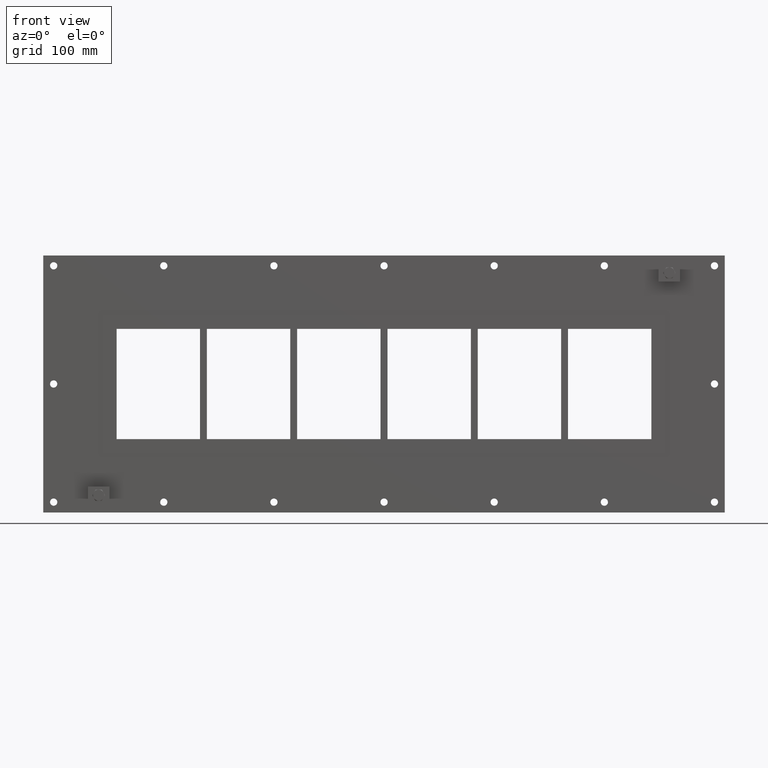
[diagram: clean part render]
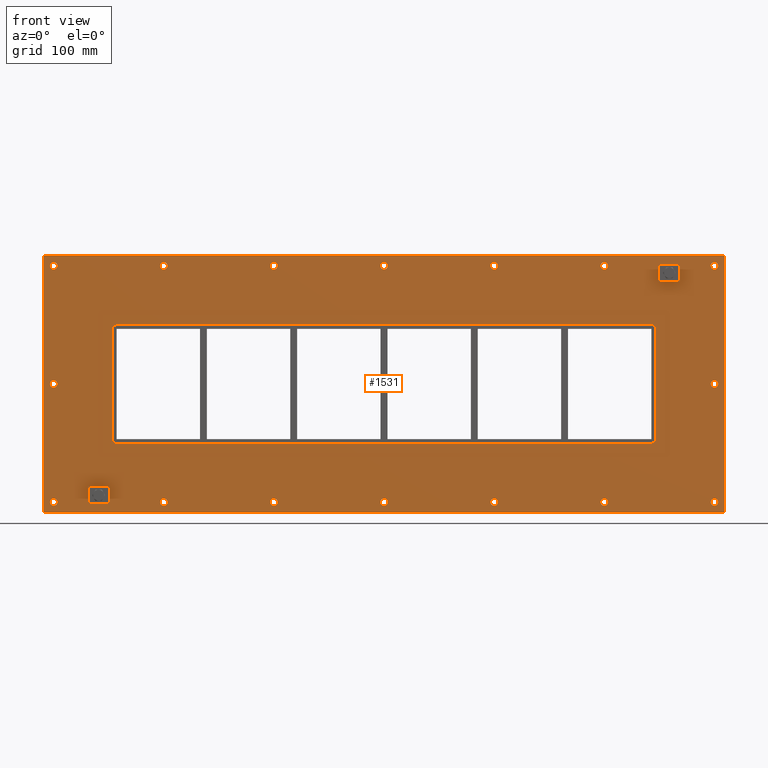
[diagram: same view with one face highlighted and labeled with its STEP entity id]
A machine part, front view. The second image highlights one B-rep face of the part: STEP entity #1531.
In plain terms, the highlighted planar face has unit normal (0, 1, 0).
Its self-contained STEP definition (entity closure, byte-faithful):
#84=CARTESIAN_POINT('',(-472.25000000000023,0.0,-170.75));
#85=VERTEX_POINT('',#84);
#86=CARTESIAN_POINT('',(-477.50000000000023,0.0,-170.75));
#87=DIRECTION('',(0.0,1.0,0.0));
#88=DIRECTION('',(1.0,0.0,0.0));
#89=AXIS2_PLACEMENT_3D('',#86,#87,#88);
#90=CIRCLE('',#89,5.25);
#91=EDGE_CURVE('',#85,#85,#90,.T.);
#112=CARTESIAN_POINT('',(482.9499999999997,0.0,0.050000000000026));
#113=VERTEX_POINT('',#112);
#114=CARTESIAN_POINT('',(477.69999999999976,0.0,0.050000000000026));
#115=DIRECTION('',(0.0,1.0,0.0));
#116=DIRECTION('',(1.0,0.0,0.0));
#117=AXIS2_PLACEMENT_3D('',#114,#115,#116);
#118=CIRCLE('',#117,5.25);
#119=EDGE_CURVE('',#113,#113,#118,.T.);
#140=CARTESIAN_POINT('',(-472.25000000000023,0.0,0.050000000000026));
#141=VERTEX_POINT('',#140);
#142=CARTESIAN_POINT('',(-477.50000000000023,0.0,0.050000000000026));
#143=DIRECTION('',(0.0,1.0,0.0));
#144=DIRECTION('',(1.0,0.0,0.0));
#145=AXIS2_PLACEMENT_3D('',#142,#143,#144);
#146=CIRCLE('',#145,5.25);
#147=EDGE_CURVE('',#141,#141,#146,.T.);
#168=CARTESIAN_POINT('',(-313.05000000000018,0.0,170.85000000000005));
#169=VERTEX_POINT('',#168);
#170=CARTESIAN_POINT('',(-318.30000000000018,0.0,170.85000000000005));
#171=DIRECTION('',(0.0,1.0,0.0));
#172=DIRECTION('',(1.0,0.0,0.0));
#173=AXIS2_PLACEMENT_3D('',#170,#171,#172);
#174=CIRCLE('',#173,5.25);
#175=EDGE_CURVE('',#169,#169,#174,.T.);
#196=CARTESIAN_POINT('',(-313.05000000000018,0.0,-170.75));
#197=VERTEX_POINT('',#196);
#198=CARTESIAN_POINT('',(-318.30000000000018,0.0,-170.75));
#199=DIRECTION('',(0.0,1.0,0.0));
#200=DIRECTION('',(1.0,0.0,0.0));
#201=AXIS2_PLACEMENT_3D('',#198,#199,#200);
#202=CIRCLE('',#201,5.25);
#203=EDGE_CURVE('',#197,#197,#202,.T.);
#224=CARTESIAN_POINT('',(-153.85000000000025,0.0,170.85000000000005));
#225=VERTEX_POINT('',#224);
#226=CARTESIAN_POINT('',(-159.10000000000022,0.0,170.85000000000005));
#227=DIRECTION('',(0.0,1.0,0.0));
#228=DIRECTION('',(1.0,0.0,0.0));
#229=AXIS2_PLACEMENT_3D('',#226,#227,#228);
#230=CIRCLE('',#229,5.25);
#231=EDGE_CURVE('',#225,#225,#230,.T.);
#252=CARTESIAN_POINT('',(-153.85000000000025,0.0,-170.75));
#253=VERTEX_POINT('',#252);
#254=CARTESIAN_POINT('',(-159.10000000000022,0.0,-170.75));
#255=DIRECTION('',(0.0,1.0,0.0));
#256=DIRECTION('',(1.0,0.0,0.0));
#257=AXIS2_PLACEMENT_3D('',#254,#255,#256);
#258=CIRCLE('',#257,5.25);
#259=EDGE_CURVE('',#253,#253,#258,.T.);
#280=CARTESIAN_POINT('',(5.349999999999771,0.0,170.85000000000005));
#281=VERTEX_POINT('',#280);
#282=CARTESIAN_POINT('',(0.099999999999785,0.0,170.85000000000005));
#283=DIRECTION('',(0.0,1.0,0.0));
#284=DIRECTION('',(1.0,0.0,0.0));
#285=AXIS2_PLACEMENT_3D('',#282,#283,#284);
#286=CIRCLE('',#285,5.25);
#287=EDGE_CURVE('',#281,#281,#286,.T.);
#308=CARTESIAN_POINT('',(5.349999999999771,0.0,-170.75));
#309=VERTEX_POINT('',#308);
#310=CARTESIAN_POINT('',(0.099999999999785,0.0,-170.75));
#311=DIRECTION('',(0.0,1.0,0.0));
#312=DIRECTION('',(1.0,0.0,0.0));
#313=AXIS2_PLACEMENT_3D('',#310,#311,#312);
#314=CIRCLE('',#313,5.25);
#315=EDGE_CURVE('',#309,#309,#314,.T.);
#336=CARTESIAN_POINT('',(164.5499999999997,0.0,170.85000000000005));
#337=VERTEX_POINT('',#336);
#338=CARTESIAN_POINT('',(159.29999999999973,0.0,170.85000000000005));
#339=DIRECTION('',(0.0,1.0,0.0));
#340=DIRECTION('',(1.0,0.0,0.0));
#341=AXIS2_PLACEMENT_3D('',#338,#339,#340);
#342=CIRCLE('',#341,5.25);
#343=EDGE_CURVE('',#337,#337,#342,.T.);
#364=CARTESIAN_POINT('',(164.5499999999997,0.0,-170.75));
#365=VERTEX_POINT('',#364);
#366=CARTESIAN_POINT('',(159.29999999999973,0.0,-170.75));
#367=DIRECTION('',(0.0,1.0,0.0));
#368=DIRECTION('',(1.0,0.0,0.0));
#369=AXIS2_PLACEMENT_3D('',#366,#367,#368);
#370=CIRCLE('',#369,5.25);
#371=EDGE_CURVE('',#365,#365,#370,.T.);
#392=CARTESIAN_POINT('',(323.74999999999972,0.0,170.85000000000005));
#393=VERTEX_POINT('',#392);
#394=CARTESIAN_POINT('',(318.49999999999972,0.0,170.85000000000005));
#395=DIRECTION('',(0.0,1.0,0.0));
#396=DIRECTION('',(1.0,0.0,0.0));
#397=AXIS2_PLACEMENT_3D('',#394,#395,#396);
#398=CIRCLE('',#397,5.25);
#399=EDGE_CURVE('',#393,#393,#398,.T.);
#420=CARTESIAN_POINT('',(323.74999999999972,0.0,-170.75));
#421=VERTEX_POINT('',#420);
#422=CARTESIAN_POINT('',(318.49999999999972,0.0,-170.75));
#423=DIRECTION('',(0.0,1.0,0.0));
#424=DIRECTION('',(1.0,0.0,0.0));
#425=AXIS2_PLACEMENT_3D('',#422,#423,#424);
#426=CIRCLE('',#425,5.25);
#427=EDGE_CURVE('',#421,#421,#426,.T.);
#448=CARTESIAN_POINT('',(482.9499999999997,0.0,-170.75));
#449=VERTEX_POINT('',#448);
#450=CARTESIAN_POINT('',(477.69999999999976,0.0,-170.75));
#451=DIRECTION('',(0.0,1.0,0.0));
#452=DIRECTION('',(1.0,0.0,0.0));
#453=AXIS2_PLACEMENT_3D('',#450,#451,#452);
#454=CIRCLE('',#453,5.25);
#455=EDGE_CURVE('',#449,#449,#454,.T.);
#476=CARTESIAN_POINT('',(-472.25000000000023,0.0,170.85000000000005));
#477=VERTEX_POINT('',#476);
#478=CARTESIAN_POINT('',(-477.50000000000023,0.0,170.85000000000005));
#479=DIRECTION('',(0.0,1.0,0.0));
#480=DIRECTION('',(1.0,0.0,0.0));
#481=AXIS2_PLACEMENT_3D('',#478,#479,#480);
#482=CIRCLE('',#481,5.25);
#483=EDGE_CURVE('',#477,#477,#482,.T.);
#504=CARTESIAN_POINT('',(482.9499999999997,0.0,170.85000000000005));
#505=VERTEX_POINT('',#504);
#506=CARTESIAN_POINT('',(477.69999999999976,0.0,170.85000000000005));
#507=DIRECTION('',(0.0,1.0,0.0));
#508=DIRECTION('',(1.0,0.0,0.0));
#509=AXIS2_PLACEMENT_3D('',#506,#507,#508);
#510=CIRCLE('',#509,5.25);
#511=EDGE_CURVE('',#505,#505,#510,.T.);
#1374=CARTESIAN_POINT('',(0.0,0.0,-1.743619E-014));
#1375=DIRECTION('',(0.0,1.0,0.0));
#1376=DIRECTION('',(0.0,0.0,1.0));
#1377=AXIS2_PLACEMENT_3D('',#1374,#1375,#1376);
#1378=PLANE('',#1377);
#1379=CARTESIAN_POINT('',(-492.50000000000006,0.0,185.74999999999994));
#1380=VERTEX_POINT('',#1379);
#1381=CARTESIAN_POINT('',(492.50000000000006,0.0,185.74999999999994));
#1382=VERTEX_POINT('',#1381);
#1383=CARTESIAN_POINT('',(-492.50000000000006,0.0,185.74999999999994));
#1384=DIRECTION('',(1.0,0.0,0.0));
#1385=VECTOR('',#1384,985.00000000000011);
#1386=LINE('',#1383,#1385);
#1387=EDGE_CURVE('',#1380,#1382,#1386,.T.);
#1388=ORIENTED_EDGE('',*,*,#1387,.F.);
#1389=CARTESIAN_POINT('',(-492.50000000000006,0.0,-185.75));
#1390=VERTEX_POINT('',#1389);
#1391=CARTESIAN_POINT('',(-492.50000000000006,0.0,-185.75));
#1392=DIRECTION('',(0.0,0.0,1.0));
#1393=VECTOR('',#1392,371.49999999999989);
#1394=LINE('',#1391,#1393);
#1395=EDGE_CURVE('',#1390,#1380,#1394,.T.);
#1396=ORIENTED_EDGE('',*,*,#1395,.F.);
#1397=CARTESIAN_POINT('',(492.50000000000006,0.0,-185.75));
#1398=VERTEX_POINT('',#1397);
#1399=CARTESIAN_POINT('',(492.50000000000006,0.0,-185.75));
#1400=DIRECTION('',(-1.0,0.0,0.0));
#1401=VECTOR('',#1400,985.00000000000011);
#1402=LINE('',#1399,#1401);
#1403=EDGE_CURVE('',#1398,#1390,#1402,.T.);
#1404=ORIENTED_EDGE('',*,*,#1403,.F.);
#1405=CARTESIAN_POINT('',(492.50000000000006,0.0,185.74999999999994));
#1406=DIRECTION('',(0.0,0.0,-1.0));
#1407=VECTOR('',#1406,371.49999999999989);
#1408=LINE('',#1405,#1407);
#1409=EDGE_CURVE('',#1382,#1398,#1408,.T.);
#1410=ORIENTED_EDGE('',*,*,#1409,.F.);
#1411=EDGE_LOOP('',(#1388,#1396,#1404,#1410));
#1412=FACE_OUTER_BOUND('',#1411,.T.);
#1413=ORIENTED_EDGE('',*,*,#91,.T.);
#1414=EDGE_LOOP('',(#1413));
#1415=FACE_BOUND('',#1414,.T.);
#1416=ORIENTED_EDGE('',*,*,#119,.T.);
#1417=EDGE_LOOP('',(#1416));
#1418=FACE_BOUND('',#1417,.T.);
#1419=ORIENTED_EDGE('',*,*,#147,.T.);
#1420=EDGE_LOOP('',(#1419));
#1421=FACE_BOUND('',#1420,.T.);
#1422=ORIENTED_EDGE('',*,*,#175,.T.);
#1423=EDGE_LOOP('',(#1422));
#1424=FACE_BOUND('',#1423,.T.);
#1425=ORIENTED_EDGE('',*,*,#203,.T.);
#1426=EDGE_LOOP('',(#1425));
#1427=FACE_BOUND('',#1426,.T.);
#1428=ORIENTED_EDGE('',*,*,#231,.T.);
#1429=EDGE_LOOP('',(#1428));
#1430=FACE_BOUND('',#1429,.T.);
#1431=ORIENTED_EDGE('',*,*,#259,.T.);
#1432=EDGE_LOOP('',(#1431));
#1433=FACE_BOUND('',#1432,.T.);
#1434=ORIENTED_EDGE('',*,*,#287,.T.);
#1435=EDGE_LOOP('',(#1434));
#1436=FACE_BOUND('',#1435,.T.);
#1437=ORIENTED_EDGE('',*,*,#315,.T.);
#1438=EDGE_LOOP('',(#1437));
#1439=FACE_BOUND('',#1438,.T.);
#1440=ORIENTED_EDGE('',*,*,#343,.T.);
#1441=EDGE_LOOP('',(#1440));
#1442=FACE_BOUND('',#1441,.T.);
#1443=ORIENTED_EDGE('',*,*,#371,.T.);
#1444=EDGE_LOOP('',(#1443));
#1445=FACE_BOUND('',#1444,.T.);
#1446=ORIENTED_EDGE('',*,*,#399,.T.);
#1447=EDGE_LOOP('',(#1446));
#1448=FACE_BOUND('',#1447,.T.);
#1449=ORIENTED_EDGE('',*,*,#427,.T.);
#1450=EDGE_LOOP('',(#1449));
#1451=FACE_BOUND('',#1450,.T.);
#1452=ORIENTED_EDGE('',*,*,#455,.T.);
#1453=EDGE_LOOP('',(#1452));
#1454=FACE_BOUND('',#1453,.T.);
#1455=ORIENTED_EDGE('',*,*,#483,.T.);
#1456=EDGE_LOOP('',(#1455));
#1457=FACE_BOUND('',#1456,.T.);
#1458=ORIENTED_EDGE('',*,*,#511,.T.);
#1459=EDGE_LOOP('',(#1458));
#1460=FACE_BOUND('',#1459,.T.);
#1461=CARTESIAN_POINT('',(-386.50000000000006,0.0,85.750000000000028));
#1462=VERTEX_POINT('',#1461);
#1463=CARTESIAN_POINT('',(-392.5,0.0,79.750000000000043));
#1464=VERTEX_POINT('',#1463);
#1465=CARTESIAN_POINT('',(-386.50000000000006,0.0,79.750000000000043));
#1466=DIRECTION('',(0.0,-1.0,0.0));
#1467=DIRECTION('',(-0.707106781186544,0.0,0.707106781186551));
#1468=AXIS2_PLACEMENT_3D('',#1465,#1466,#1467);
#1469=CIRCLE('',#1468,6.0);
#1470=EDGE_CURVE('',#1462,#1464,#1469,.T.);
#1471=ORIENTED_EDGE('',*,*,#1470,.F.);
#1472=CARTESIAN_POINT('',(386.50000000000006,0.0,85.750000000000028));
#1473=VERTEX_POINT('',#1472);
#1474=CARTESIAN_POINT('',(386.5,0.0,85.750000000000028));
#1475=DIRECTION('',(-1.0,0.0,0.0));
#1476=VECTOR('',#1475,773.0);
#1477=LINE('',#1474,#1476);
#1478=EDGE_CURVE('',#1473,#1462,#1477,.T.);
#1479=ORIENTED_EDGE('',*,*,#1478,.F.);
#1480=CARTESIAN_POINT('',(392.50000000000011,0.0,79.750000000000028));
#1481=VERTEX_POINT('',#1480);
#1482=CARTESIAN_POINT('',(386.50000000000006,0.0,79.750000000000028));
#1483=DIRECTION('',(0.0,-1.0,0.0));
#1484=DIRECTION('',(0.707106781186554,0.0,0.707106781186541));
#1485=AXIS2_PLACEMENT_3D('',#1482,#1483,#1484);
#1486=CIRCLE('',#1485,6.0);
#1487=EDGE_CURVE('',#1481,#1473,#1486,.T.);
#1488=ORIENTED_EDGE('',*,*,#1487,.F.);
#1489=CARTESIAN_POINT('',(392.50000000000011,0.0,-79.750000000000043));
#1490=VERTEX_POINT('',#1489);
#1491=CARTESIAN_POINT('',(392.50000000000011,0.0,-79.750000000000043));
#1492=DIRECTION('',(0.0,0.0,1.0));
#1493=VECTOR('',#1492,159.50000000000006);
#1494=LINE('',#1491,#1493);
#1495=EDGE_CURVE('',#1490,#1481,#1494,.T.);
#1496=ORIENTED_EDGE('',*,*,#1495,.F.);
#1497=CARTESIAN_POINT('',(386.50000000000023,0.0,-85.750000000000028));
#1498=VERTEX_POINT('',#1497);
#1499=CARTESIAN_POINT('',(386.50000000000023,0.0,-79.750000000000043));
#1500=DIRECTION('',(0.0,-1.0,0.0));
#1501=DIRECTION('',(0.707106781186544,0.0,-0.707106781186551));
#1502=AXIS2_PLACEMENT_3D('',#1499,#1500,#1501);
#1503=CIRCLE('',#1502,6.0);
#1504=EDGE_CURVE('',#1498,#1490,#1503,.T.);
#1505=ORIENTED_EDGE('',*,*,#1504,.F.);
#1506=CARTESIAN_POINT('',(-386.49999999999989,0.0,-85.750000000000028));
#1507=VERTEX_POINT('',#1506);
#1508=CARTESIAN_POINT('',(-386.49999999999994,0.0,-85.750000000000028));
#1509=DIRECTION('',(1.0,0.0,0.0));
#1510=VECTOR('',#1509,773.00000000000011);
#1511=LINE('',#1508,#1510);
#1512=EDGE_CURVE('',#1507,#1498,#1511,.T.);
#1513=ORIENTED_EDGE('',*,*,#1512,.F.);
#1514=CARTESIAN_POINT('',(-392.5,0.0,-79.750000000000043));
#1515=VERTEX_POINT('',#1514);
#1516=CARTESIAN_POINT('',(-386.49999999999989,0.0,-79.750000000000043));
#1517=DIRECTION('',(0.0,-1.0,0.0));
#1518=DIRECTION('',(-0.707106781186553,0.0,-0.707106781186542));
#1519=AXIS2_PLACEMENT_3D('',#1516,#1517,#1518);
#1520=CIRCLE('',#1519,6.000000000000001);
#1521=EDGE_CURVE('',#1515,#1507,#1520,.T.);
#1522=ORIENTED_EDGE('',*,*,#1521,.F.);
#1523=CARTESIAN_POINT('',(-392.5,0.0,79.750000000000028));
#1524=DIRECTION('',(0.0,0.0,-1.0));
#1525=VECTOR('',#1524,159.50000000000006);
#1526=LINE('',#1523,#1525);
#1527=EDGE_CURVE('',#1464,#1515,#1526,.T.);
#1528=ORIENTED_EDGE('',*,*,#1527,.F.);
#1529=EDGE_LOOP('',(#1471,#1479,#1488,#1496,#1505,#1513,#1522,#1528));
#1530=FACE_BOUND('',#1529,.T.);
#1531=ADVANCED_FACE('',(#1412,#1415,#1418,#1421,#1424,#1427,#1430,#1433,#1436,#1439,#1442,#1445,#1448,#1451,#1454,#1457,#1460,#1530),#1378,.F.);